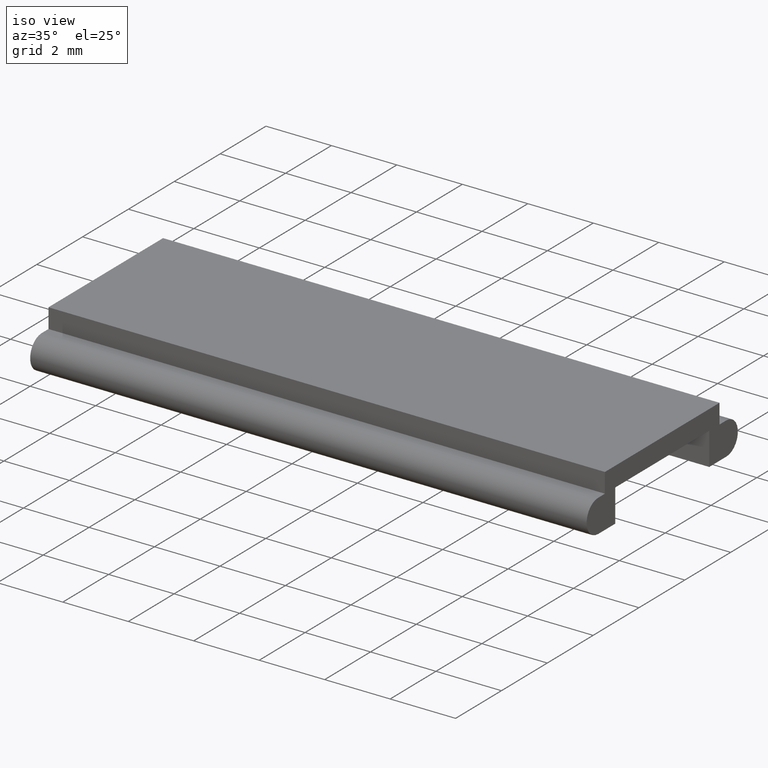
[diagram: clean part render]
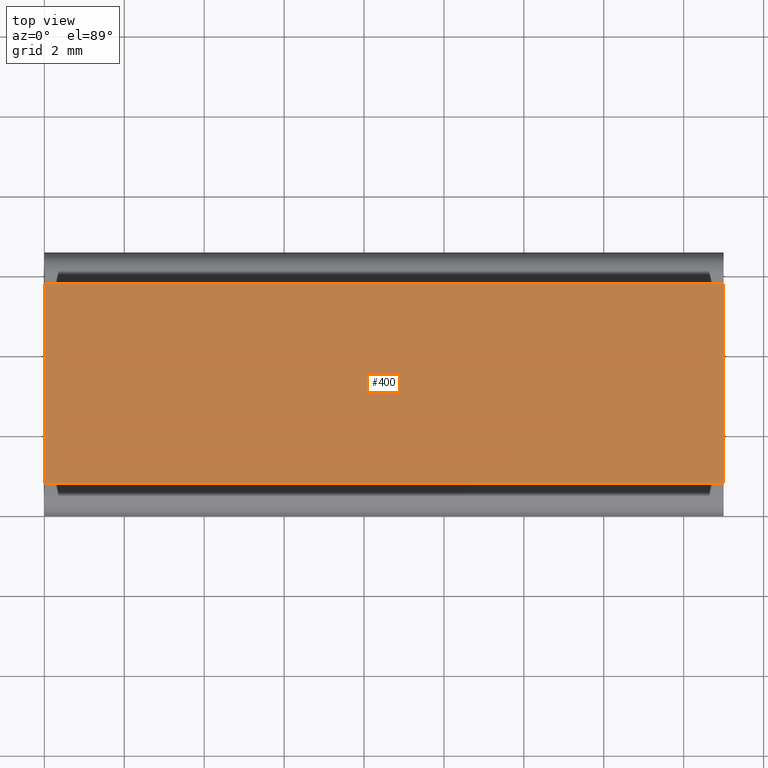
[diagram: tour spotlight — one face highlighted and labeled with its STEP entity id]
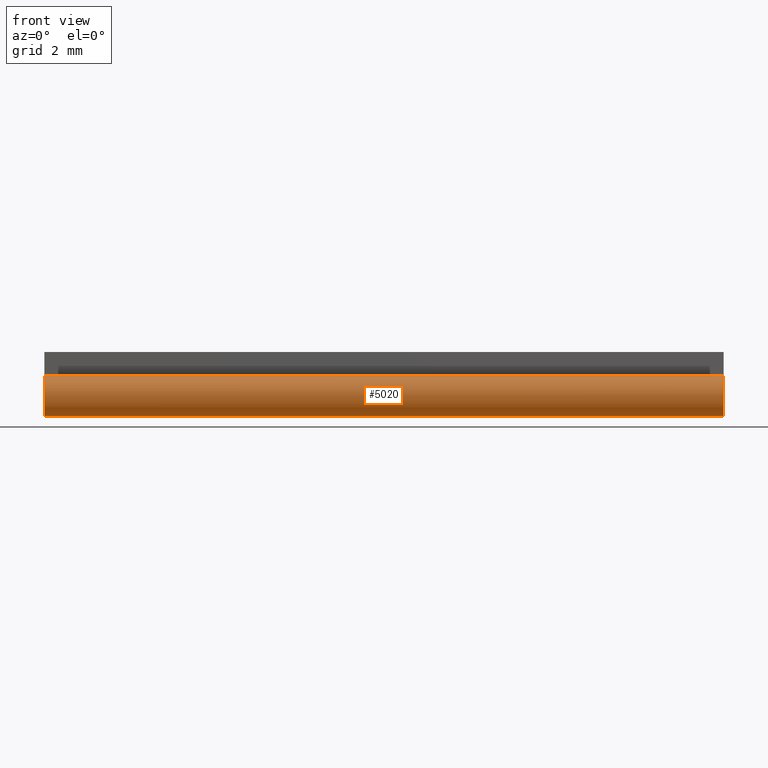
[diagram: tour spotlight — one face highlighted and labeled with its STEP entity id]
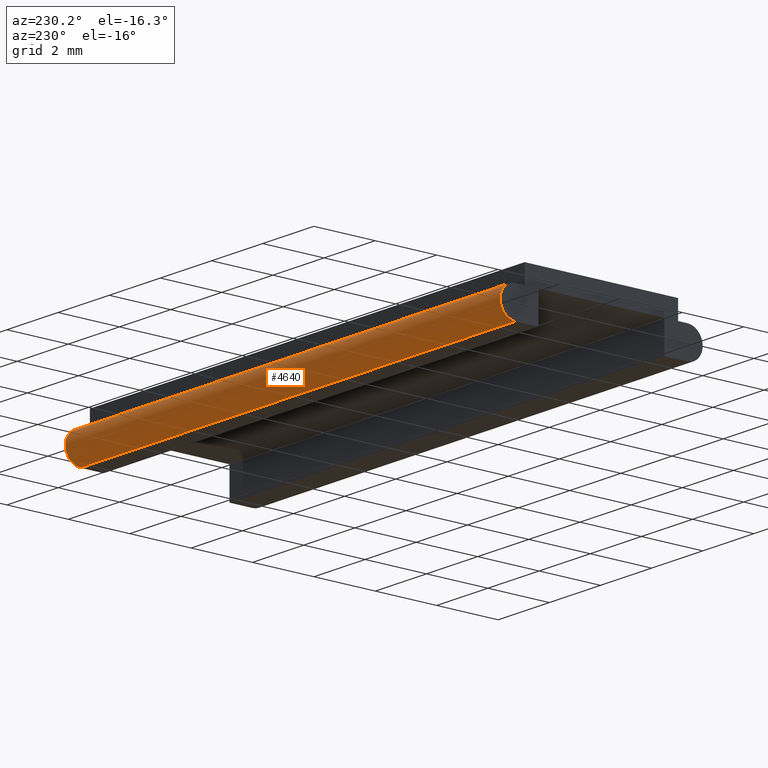
[diagram: tour spotlight — one face highlighted and labeled with its STEP entity id]
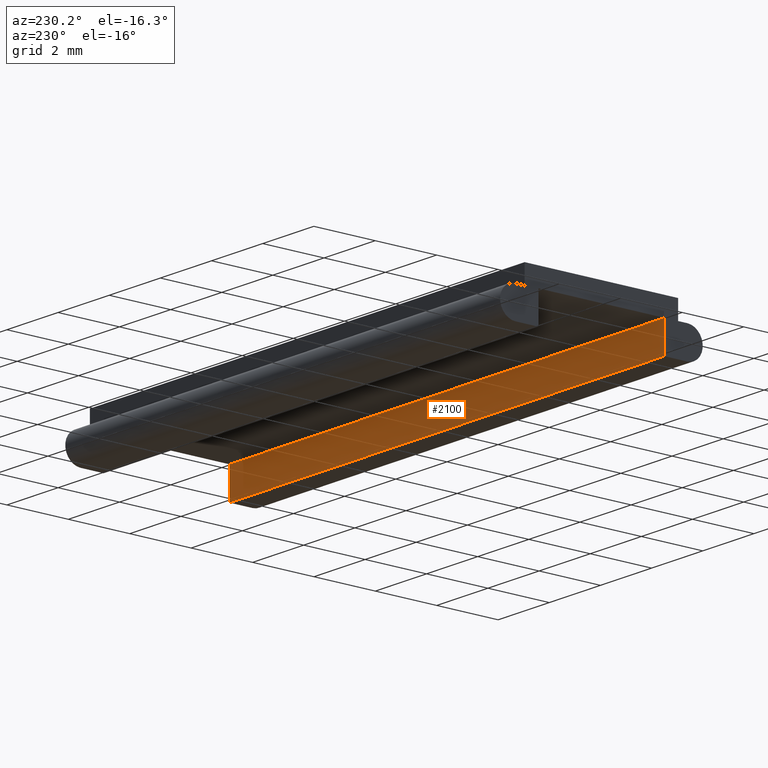
[diagram: tour spotlight — one face highlighted and labeled with its STEP entity id]
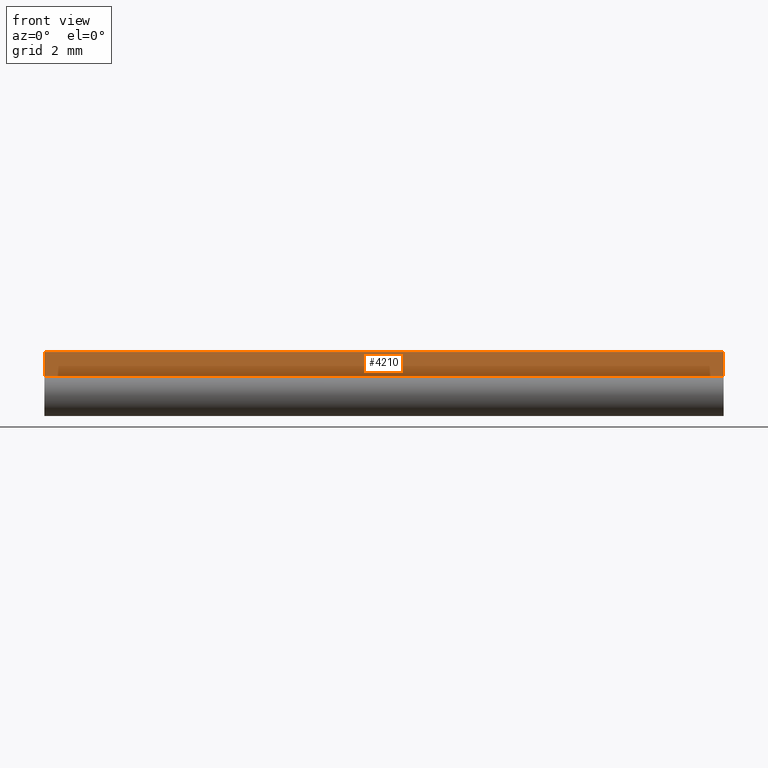
[diagram: tour spotlight — one face highlighted and labeled with its STEP entity id]
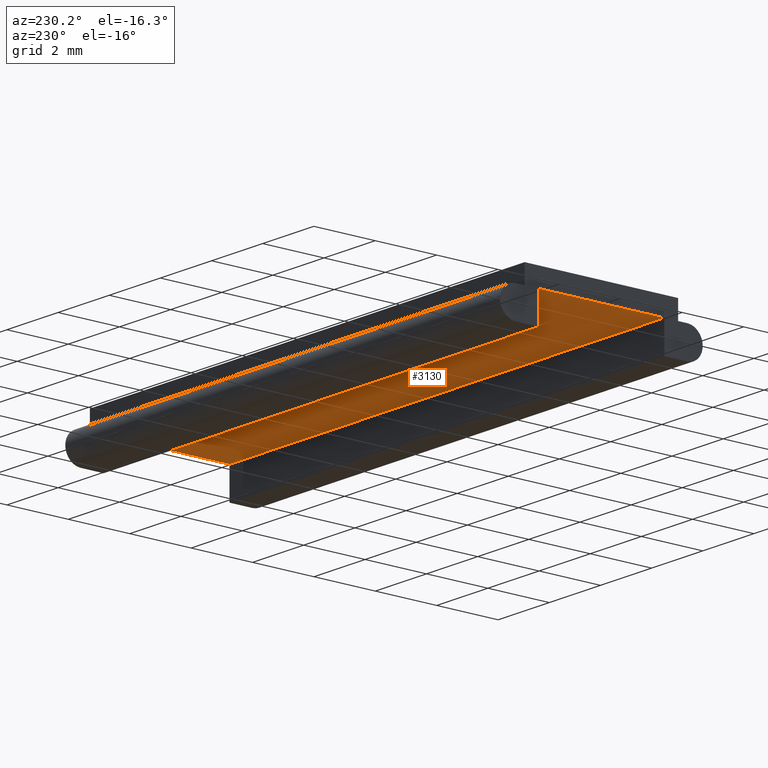
[diagram: tour spotlight — one face highlighted and labeled with its STEP entity id]
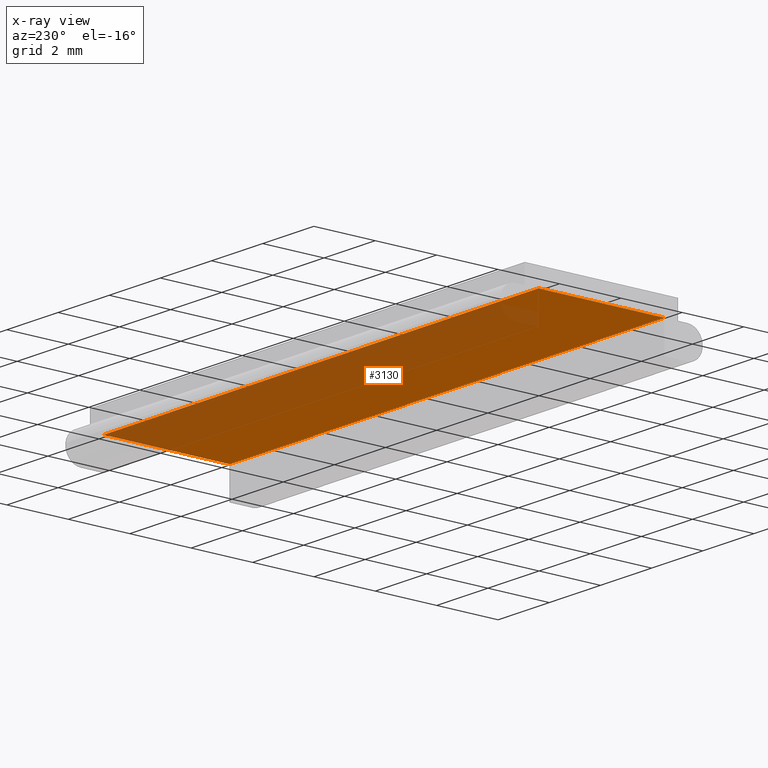
[diagram: x-ray of the same camera — body ghosted, this tour face saturated]
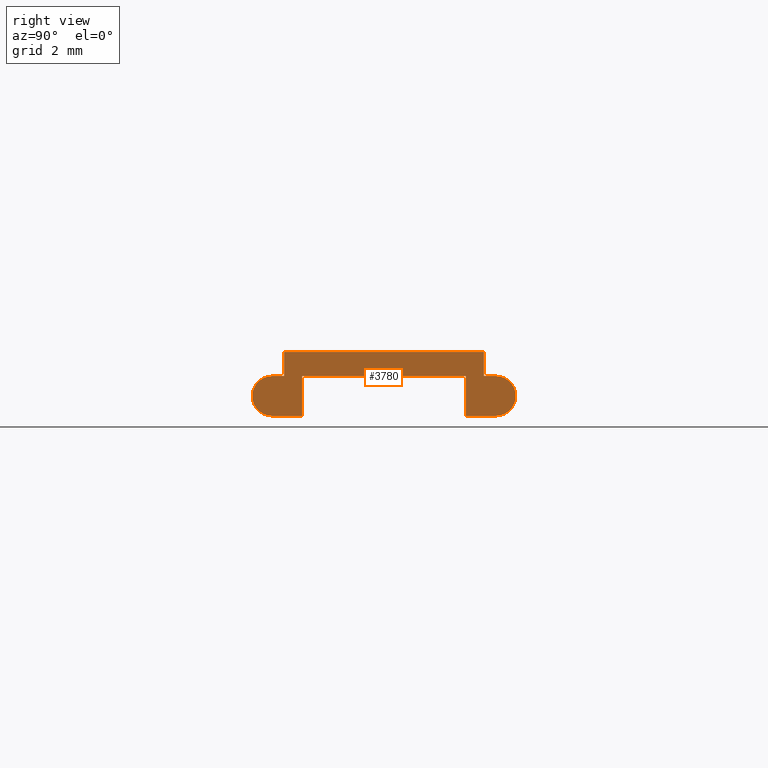
[diagram: tour spotlight — one face highlighted and labeled with its STEP entity id]
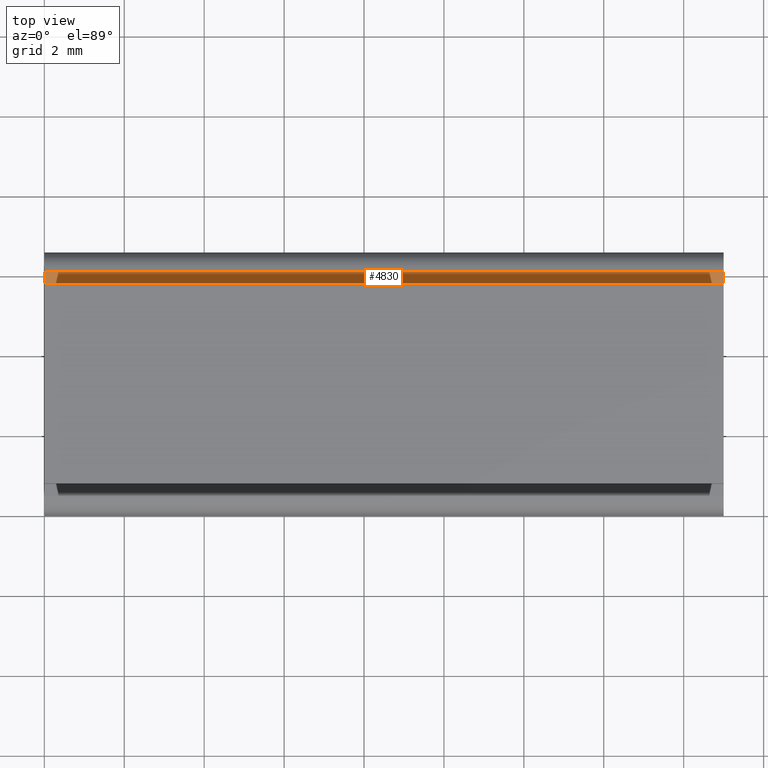
[diagram: tour spotlight — one face highlighted and labeled with its STEP entity id]
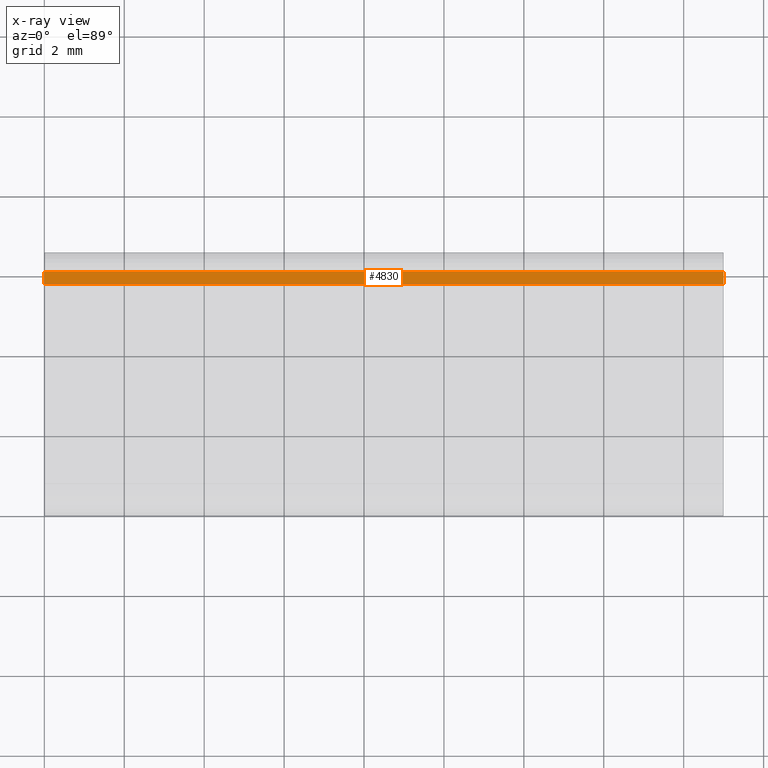
[diagram: x-ray of the same camera — body ghosted, this tour face saturated]
A machine part: a face-by-face anatomy tour. The part has 14 B-rep faces; the first image is the clean iso view, then the 8 largest visible faces are spotlighted one at a time (largest first), each with its STEP entity span.

Face 1 — top view, entity #400. In plain terms, the highlighted planar face has unit normal (0, -0, 1).
Definition (entity closure, byte-faithful):
#10=CARTESIAN_POINT('',(381.426447634406,993.884349945384,
0.0999999999999872));
#20=DIRECTION('',(-0.,6.12323399573677E-17,1.));
#30=DIRECTION('',(1.,0.,0.));
#40=AXIS2_PLACEMENT_3D('',#10,#20,#30);
#50=PLANE('',#40);
#60=CARTESIAN_POINT('',(398.426447634406,0.,0.100000000000048));
#70=DIRECTION('',(0.,1.,-6.12323399573677E-17));
#80=VECTOR('',#70,1.);
#90=LINE('',#60,#80);
#100=CARTESIAN_POINT('',(398.426447634406,987.424347545384,
0.0999999999999876));
#110=VERTEX_POINT('',#100);
#120=CARTESIAN_POINT('',(398.426447634406,992.424347545384,
0.0999999999999873));
#130=VERTEX_POINT('',#120);
#140=EDGE_CURVE('',#110,#130,#90,.T.);
#150=ORIENTED_EDGE('',*,*,#140,.T.);
#160=CARTESIAN_POINT('',(0.,987.424347545384,0.0999999999999876));
#170=DIRECTION('',(-1.,0.,0.));
#180=VECTOR('',#170,1.);
#190=LINE('',#160,#180);
#200=CARTESIAN_POINT('',(381.426447634406,987.424347545384,
0.0999999999999876));
#210=VERTEX_POINT('',#200);
#220=EDGE_CURVE('',#110,#210,#190,.T.);
#230=ORIENTED_EDGE('',*,*,#220,.F.);
#240=CARTESIAN_POINT('',(381.426447634406,0.,0.100000000000048));
#250=DIRECTION('',(0.,-1.,6.12323399573677E-17));
#260=VECTOR('',#250,1.);
#270=LINE('',#240,#260);
#280=CARTESIAN_POINT('',(381.426447634406,992.424347545384,
0.0999999999999873));
#290=VERTEX_POINT('',#280);
#300=EDGE_CURVE('',#290,#210,#270,.T.);
#310=ORIENTED_EDGE('',*,*,#300,.T.);
#320=CARTESIAN_POINT('',(0.,992.424347545384,0.0999999999999873));
#330=DIRECTION('',(1.,0.,0.));
#340=VECTOR('',#330,1.);
#350=LINE('',#320,#340);
#360=EDGE_CURVE('',#290,#130,#350,.T.);
#370=ORIENTED_EDGE('',*,*,#360,.F.);
#380=EDGE_LOOP('',(#370,#310,#230,#150));
#390=FACE_OUTER_BOUND('',#380,.T.);
#400=ADVANCED_FACE('',(#390),#50,.T.);

Face 2 — front view, entity #5020. In plain terms, the highlighted cylindrical surface (edge-blend (fillet) strip) has radius 0.5 mm, axis along (-1, 0, 0).
Definition (entity closure, byte-faithful):
#1050=CARTESIAN_POINT('',(398.426447634406,992.724347545384,
-1.50000000000001));
#1060=VERTEX_POINT('',#1050);
#1090=CARTESIAN_POINT('',(381.426447634406,992.724347545384,
-1.50000000000002));
#1100=DIRECTION('',(1.,0.,0.));
#1110=VECTOR('',#1100,1.);
#1120=LINE('',#1090,#1110);
#1130=CARTESIAN_POINT('',(381.426447634406,992.724347545384,
-1.50000000000001));
#1140=VERTEX_POINT('',#1130);
#1150=EDGE_CURVE('',#1140,#1060,#1120,.T.);
#1420=CARTESIAN_POINT('',(381.426447634406,992.724347545384,
-0.500000000000021));
#1430=VERTEX_POINT('',#1420);
#1480=CARTESIAN_POINT('',(381.426447634406,992.724347545384,
-0.500000000000021));
#1490=DIRECTION('',(1.,0.,0.));
#1500=VECTOR('',#1490,1.);
#1510=LINE('',#1480,#1500);
#1520=CARTESIAN_POINT('',(398.426447634406,992.724347545384,
-0.500000000000021));
#1530=VERTEX_POINT('',#1520);
#1540=EDGE_CURVE('',#1430,#1530,#1510,.T.);
#2320=CARTESIAN_POINT('',(398.426447634406,992.724347545384,
-1.00000000000002));
#2330=DIRECTION('',(1.,0.,0.));
#2340=DIRECTION('',(0.,1.,0.));
#2350=AXIS2_PLACEMENT_3D('',#2320,#2330,#2340);
#2360=CIRCLE('',#2350,0.5);
#2370=EDGE_CURVE('',#1060,#1530,#2360,.T.);
#3600=CARTESIAN_POINT('',(381.426447634406,992.724347545384,
-1.00000000000002));
#3610=DIRECTION('',(1.,0.,0.));
#3620=DIRECTION('',(0.,1.,0.));
#3630=AXIS2_PLACEMENT_3D('',#3600,#3610,#3620);
#3640=CIRCLE('',#3630,0.5);
#3650=EDGE_CURVE('',#1140,#1430,#3640,.T.);
#4910=CARTESIAN_POINT('',(381.426447634406,992.724347545384,
-1.00000000000002));
#4920=DIRECTION('',(1.,0.,0.));
#4930=DIRECTION('',(0.,1.,0.));
#4940=AXIS2_PLACEMENT_3D('',#4910,#4920,#4930);
#4950=CYLINDRICAL_SURFACE('',#4940,0.5);
#4960=ORIENTED_EDGE('',*,*,#1540,.T.);
#4970=ORIENTED_EDGE('',*,*,#3650,.T.);
#4980=ORIENTED_EDGE('',*,*,#1150,.F.);
#4990=ORIENTED_EDGE('',*,*,#2370,.F.);
#5000=EDGE_LOOP('',(#4990,#4980,#4970,#4960));
#5010=FACE_OUTER_BOUND('',#5000,.T.);
#5020=ADVANCED_FACE('',(#5010),#4950,.T.);

Face 3 — auxiliary view, entity #4640. In plain terms, the highlighted cylindrical surface (edge-blend (fillet) strip) has radius 0.5 mm, axis along (-1, 0, 0).
Definition (entity closure, byte-faithful):
#2610=CARTESIAN_POINT('',(398.426447634406,987.124347545384,
-1.50000000000002));
#2620=VERTEX_POINT('',#2610);
#2650=CARTESIAN_POINT('',(398.426447634406,987.124347545384,
-1.00000000000002));
#2660=DIRECTION('',(1.,0.,0.));
#2670=DIRECTION('',(0.,1.,0.));
#2680=AXIS2_PLACEMENT_3D('',#2650,#2660,#2670);
#2690=CIRCLE('',#2680,0.5);
#2700=CARTESIAN_POINT('',(398.426447634406,987.124347545384,
-0.500000000000021));
#2710=VERTEX_POINT('',#2700);
#2720=EDGE_CURVE('',#2710,#2620,#2690,.T.);
#3300=CARTESIAN_POINT('',(381.426447634406,987.124347545384,
-0.500000000000021));
#3310=VERTEX_POINT('',#3300);
#3340=CARTESIAN_POINT('',(381.426447634406,987.124347545384,
-1.00000000000002));
#3350=DIRECTION('',(1.,0.,0.));
#3360=DIRECTION('',(0.,1.,0.));
#3370=AXIS2_PLACEMENT_3D('',#3340,#3350,#3360);
#3380=CIRCLE('',#3370,0.5);
#3390=CARTESIAN_POINT('',(381.426447634406,987.124347545384,
-1.50000000000002));
#3400=VERTEX_POINT('',#3390);
#3410=EDGE_CURVE('',#3310,#3400,#3380,.T.);
#4300=CARTESIAN_POINT('',(381.426447634406,987.124347545384,
-1.50000000000002));
#4310=DIRECTION('',(1.,0.,0.));
#4320=VECTOR('',#4310,1.);
#4330=LINE('',#4300,#4320);
#4340=EDGE_CURVE('',#3400,#2620,#4330,.T.);
#4480=CARTESIAN_POINT('',(381.426447634406,987.124347545384,
-1.00000000000002));
#4490=DIRECTION('',(1.,0.,0.));
#4500=DIRECTION('',(0.,1.,0.));
#4510=AXIS2_PLACEMENT_3D('',#4480,#4490,#4500);
#4520=CYLINDRICAL_SURFACE('',#4510,0.5);
#4530=ORIENTED_EDGE('',*,*,#4340,.T.);
#4540=ORIENTED_EDGE('',*,*,#3410,.T.);
#4550=CARTESIAN_POINT('',(381.426447634406,987.124347545384,
-0.500000000000021));
#4560=DIRECTION('',(1.,0.,0.));
#4570=VECTOR('',#4560,1.);
#4580=LINE('',#4550,#4570);
#4590=EDGE_CURVE('',#3310,#2710,#4580,.T.);
#4600=ORIENTED_EDGE('',*,*,#4590,.F.);
#4610=ORIENTED_EDGE('',*,*,#2720,.F.);
#4620=EDGE_LOOP('',(#4610,#4600,#4540,#4530));
#4630=FACE_OUTER_BOUND('',#4620,.T.);
#4640=ADVANCED_FACE('',(#4630),#4520,.T.);

Face 4 — auxiliary view, entity #2100. In plain terms, the highlighted planar face has unit normal (0, 1, 0).
Definition (entity closure, byte-faithful):
#910=CARTESIAN_POINT('',(0.,991.974347545384,-1.50000000000001));
#920=DIRECTION('',(-1.,0.,0.));
#930=VECTOR('',#920,1.);
#940=LINE('',#910,#930);
#950=CARTESIAN_POINT('',(398.426447634406,991.974347545384,
-1.50000000000001));
#960=VERTEX_POINT('',#950);
#970=CARTESIAN_POINT('',(381.426447634406,991.974347545384,
-1.50000000000001));
#980=VERTEX_POINT('',#970);
#990=EDGE_CURVE('',#960,#980,#940,.T.);
#1800=CARTESIAN_POINT('',(381.426447634406,991.974347545384,
-1.00000000000002));
#1810=DIRECTION('',(0.,-1.,0.));
#1820=DIRECTION('',(0.,0.,1.));
#1830=AXIS2_PLACEMENT_3D('',#1800,#1810,#1820);
#1840=PLANE('',#1830);
#1850=CARTESIAN_POINT('',(381.426447634406,991.974347545384,0.));
#1860=DIRECTION('',(0.,0.,-1.));
#1870=VECTOR('',#1860,1.);
#1880=LINE('',#1850,#1870);
#1890=CARTESIAN_POINT('',(381.426447634406,991.974347545384,
-0.500000000000021));
#1900=VERTEX_POINT('',#1890);
#1910=EDGE_CURVE('',#1900,#980,#1880,.T.);
#1920=ORIENTED_EDGE('',*,*,#1910,.T.);
#1930=CARTESIAN_POINT('',(0.,991.974347545384,-0.500000000000021));
#1940=DIRECTION('',(-1.,0.,0.));
#1950=VECTOR('',#1940,1.);
#1960=LINE('',#1930,#1950);
#1970=CARTESIAN_POINT('',(398.426447634406,991.974347545384,
-0.500000000000021));
#1980=VERTEX_POINT('',#1970);
#1990=EDGE_CURVE('',#1980,#1900,#1960,.T.);
#2000=ORIENTED_EDGE('',*,*,#1990,.T.);
#2010=CARTESIAN_POINT('',(398.426447634406,991.974347545384,0.));
#2020=DIRECTION('',(0.,0.,1.));
#2030=VECTOR('',#2020,1.);
#2040=LINE('',#2010,#2030);
#2050=EDGE_CURVE('',#960,#1980,#2040,.T.);
#2060=ORIENTED_EDGE('',*,*,#2050,.T.);
#2070=ORIENTED_EDGE('',*,*,#990,.F.);
#2080=EDGE_LOOP('',(#2070,#2060,#2000,#1920));
#2090=FACE_OUTER_BOUND('',#2080,.T.);
#2100=ADVANCED_FACE('',(#2090),#1840,.T.);

Face 5 — front view, entity #4210. In plain terms, the highlighted planar face has unit normal (0, -1, 0).
Definition (entity closure, byte-faithful):
#120=CARTESIAN_POINT('',(398.426447634406,992.424347545384,
0.0999999999999873));
#130=VERTEX_POINT('',#120);
#280=CARTESIAN_POINT('',(381.426447634406,992.424347545384,
0.0999999999999873));
#290=VERTEX_POINT('',#280);
#320=CARTESIAN_POINT('',(0.,992.424347545384,0.0999999999999873));
#330=DIRECTION('',(1.,0.,0.));
#340=VECTOR('',#330,1.);
#350=LINE('',#320,#340);
#360=EDGE_CURVE('',#290,#130,#350,.T.);
#1440=CARTESIAN_POINT('',(381.426447634406,992.424347545384,
-0.500000000000021));
#1450=VERTEX_POINT('',#1440);
#1600=CARTESIAN_POINT('',(398.426447634406,992.424347545384,
-0.500000000000021));
#1610=VERTEX_POINT('',#1600);
#1640=CARTESIAN_POINT('',(0.,992.424347545384,-0.500000000000021));
#1650=DIRECTION('',(-1.,0.,0.));
#1660=VECTOR('',#1650,1.);
#1670=LINE('',#1640,#1660);
#1680=EDGE_CURVE('',#1610,#1450,#1670,.T.);
#2250=CARTESIAN_POINT('',(398.426447634406,992.424347545384,0.));
#2260=DIRECTION('',(0.,0.,-1.));
#2270=VECTOR('',#2260,1.);
#2280=LINE('',#2250,#2270);
#2290=EDGE_CURVE('',#130,#1610,#2280,.T.);
#3680=CARTESIAN_POINT('',(381.426447634406,992.424347545384,0.));
#3690=DIRECTION('',(0.,0.,1.));
#3700=VECTOR('',#3690,1.);
#3710=LINE('',#3680,#3700);
#3720=EDGE_CURVE('',#1450,#290,#3710,.T.);
#4100=CARTESIAN_POINT('',(475.426447634406,992.424347545384,
-1.66000240000002));
#4110=DIRECTION('',(-0.,1.,0.));
#4120=DIRECTION('',(1.,0.,0.));
#4130=AXIS2_PLACEMENT_3D('',#4100,#4110,#4120);
#4140=PLANE('',#4130);
#4150=ORIENTED_EDGE('',*,*,#1680,.T.);
#4160=ORIENTED_EDGE('',*,*,#2290,.T.);
#4170=ORIENTED_EDGE('',*,*,#360,.T.);
#4180=ORIENTED_EDGE('',*,*,#3720,.T.);
#4190=EDGE_LOOP('',(#4180,#4170,#4160,#4150));
#4200=FACE_OUTER_BOUND('',#4190,.T.);
#4210=ADVANCED_FACE('',(#4200),#4140,.T.);

Face 6 — auxiliary view, entity #3130. An x-ray twin of the same camera follows (body ghosted, this face saturated) — the face is partly hidden behind the body. In plain terms, the highlighted planar face has unit normal (0, 0, -1).
Definition (entity closure, byte-faithful):
#1890=CARTESIAN_POINT('',(381.426447634406,991.974347545384,
-0.500000000000021));
#1900=VERTEX_POINT('',#1890);
#1930=CARTESIAN_POINT('',(0.,991.974347545384,-0.500000000000021));
#1940=DIRECTION('',(-1.,0.,0.));
#1950=VECTOR('',#1940,1.);
#1960=LINE('',#1930,#1950);
#1970=CARTESIAN_POINT('',(398.426447634406,991.974347545384,
-0.500000000000021));
#1980=VERTEX_POINT('',#1970);
#1990=EDGE_CURVE('',#1980,#1900,#1960,.T.);
#2410=CARTESIAN_POINT('',(398.426447634406,0.,-0.500000000000021));
#2420=DIRECTION('',(0.,-1.,0.));
#2430=VECTOR('',#2420,1.);
#2440=LINE('',#2410,#2430);
#2450=CARTESIAN_POINT('',(398.426447634406,987.874347545384,
-0.500000000000021));
#2460=VERTEX_POINT('',#2450);
#2470=EDGE_CURVE('',#1980,#2460,#2440,.T.);
#2900=CARTESIAN_POINT('',(381.426447634406,991.674347545384,
-0.500000000000021));
#2910=DIRECTION('',(-0.,-0.,-1.));
#2920=DIRECTION('',(0.,-1.,0.));
#2930=AXIS2_PLACEMENT_3D('',#2900,#2910,#2920);
#2940=PLANE('',#2930);
#2950=CARTESIAN_POINT('',(0.,987.874347545384,-0.500000000000021));
#2960=DIRECTION('',(-1.,0.,0.));
#2970=VECTOR('',#2960,1.);
#2980=LINE('',#2950,#2970);
#2990=CARTESIAN_POINT('',(381.426447634406,987.874347545384,
-0.500000000000021));
#3000=VERTEX_POINT('',#2990);
#3010=EDGE_CURVE('',#2460,#3000,#2980,.T.);
#3020=ORIENTED_EDGE('',*,*,#3010,.T.);
#3030=ORIENTED_EDGE('',*,*,#2470,.T.);
#3040=ORIENTED_EDGE('',*,*,#1990,.F.);
#3050=CARTESIAN_POINT('',(381.426447634406,0.,-0.500000000000021));
#3060=DIRECTION('',(0.,1.,0.));
#3070=VECTOR('',#3060,1.);
#3080=LINE('',#3050,#3070);
#3090=EDGE_CURVE('',#3000,#1900,#3080,.T.);
#3100=ORIENTED_EDGE('',*,*,#3090,.T.);
#3110=EDGE_LOOP('',(#3100,#3040,#3030,#3020));
#3120=FACE_OUTER_BOUND('',#3110,.T.);
#3130=ADVANCED_FACE('',(#3120),#2940,.T.);

Face 7 — right view, entity #3780. In plain terms, the highlighted planar face has unit normal (1, 0, 0).
Definition (entity closure, byte-faithful):
#200=CARTESIAN_POINT('',(381.426447634406,987.424347545384,
0.0999999999999876));
#210=VERTEX_POINT('',#200);
#240=CARTESIAN_POINT('',(381.426447634406,0.,0.100000000000048));
#250=DIRECTION('',(0.,-1.,6.12323399573677E-17));
#260=VECTOR('',#250,1.);
#270=LINE('',#240,#260);
#280=CARTESIAN_POINT('',(381.426447634406,992.424347545384,
0.0999999999999873));
#290=VERTEX_POINT('',#280);
#300=EDGE_CURVE('',#290,#210,#270,.T.);
#530=CARTESIAN_POINT('',(381.426447634406,987.424347545384,0.));
#540=DIRECTION('',(0.,0.,-1.));
#550=VECTOR('',#540,1.);
#560=LINE('',#530,#550);
#570=CARTESIAN_POINT('',(381.426447634406,987.424347545384,
-0.500000000000021));
#580=VERTEX_POINT('',#570);
#590=EDGE_CURVE('',#210,#580,#560,.T.);
#970=CARTESIAN_POINT('',(381.426447634406,991.974347545384,
-1.50000000000001));
#980=VERTEX_POINT('',#970);
#1130=CARTESIAN_POINT('',(381.426447634406,992.724347545384,
-1.50000000000001));
#1140=VERTEX_POINT('',#1130);
#1170=CARTESIAN_POINT('',(381.426447634406,0.,-1.49999999999995));
#1180=DIRECTION('',(0.,1.,-6.12323399573677E-17));
#1190=VECTOR('',#1180,1.);
#1200=LINE('',#1170,#1190);
#1210=EDGE_CURVE('',#980,#1140,#1200,.T.);
#1380=CARTESIAN_POINT('',(381.426447634406,0.,-0.500000000000021));
#1390=DIRECTION('',(0.,-1.,0.));
#1400=VECTOR('',#1390,1.);
#1410=LINE('',#1380,#1400);
#1420=CARTESIAN_POINT('',(381.426447634406,992.724347545384,
-0.500000000000021));
#1430=VERTEX_POINT('',#1420);
#1440=CARTESIAN_POINT('',(381.426447634406,992.424347545384,
-0.500000000000021));
#1450=VERTEX_POINT('',#1440);
#1460=EDGE_CURVE('',#1430,#1450,#1410,.T.);
#1850=CARTESIAN_POINT('',(381.426447634406,991.974347545384,0.));
#1860=DIRECTION('',(0.,0.,-1.));
#1870=VECTOR('',#1860,1.);
#1880=LINE('',#1850,#1870);
#1890=CARTESIAN_POINT('',(381.426447634406,991.974347545384,
-0.500000000000021));
#1900=VERTEX_POINT('',#1890);
#1910=EDGE_CURVE('',#1900,#980,#1880,.T.);
#2990=CARTESIAN_POINT('',(381.426447634406,987.874347545384,
-0.500000000000021));
#3000=VERTEX_POINT('',#2990);
#3050=CARTESIAN_POINT('',(381.426447634406,0.,-0.500000000000021));
#3060=DIRECTION('',(0.,1.,0.));
#3070=VECTOR('',#3060,1.);
#3080=LINE('',#3050,#3070);
#3090=EDGE_CURVE('',#3000,#1900,#3080,.T.);
#3210=CARTESIAN_POINT('',(381.426447634406,993.884349945384,
-1.50000000000001));
#3220=DIRECTION('',(-1.,0.,0.));
#3230=DIRECTION('',(0.,6.12323399573677E-17,1.));
#3240=AXIS2_PLACEMENT_3D('',#3210,#3220,#3230);
#3250=PLANE('',#3240);
#3260=CARTESIAN_POINT('',(381.426447634406,0.,-0.500000000000021));
#3270=DIRECTION('',(0.,-1.,0.));
#3280=VECTOR('',#3270,1.);
#3290=LINE('',#3260,#3280);
#3300=CARTESIAN_POINT('',(381.426447634406,987.124347545384,
-0.500000000000021));
#3310=VERTEX_POINT('',#3300);
#3320=EDGE_CURVE('',#580,#3310,#3290,.T.);
#3330=ORIENTED_EDGE('',*,*,#3320,.F.);
#3340=CARTESIAN_POINT('',(381.426447634406,987.124347545384,
-1.00000000000002));
#3350=DIRECTION('',(1.,0.,0.));
#3360=DIRECTION('',(0.,1.,0.));
#3370=AXIS2_PLACEMENT_3D('',#3340,#3350,#3360);
#3380=CIRCLE('',#3370,0.5);
#3390=CARTESIAN_POINT('',(381.426447634406,987.124347545384,
-1.50000000000002));
#3400=VERTEX_POINT('',#3390);
#3410=EDGE_CURVE('',#3310,#3400,#3380,.T.);
#3420=ORIENTED_EDGE('',*,*,#3410,.F.);
#3430=CARTESIAN_POINT('',(381.426447634406,0.,-1.49999999999995));
#3440=DIRECTION('',(0.,1.,-6.12323399573677E-17));
#3450=VECTOR('',#3440,1.);
#3460=LINE('',#3430,#3450);
#3470=CARTESIAN_POINT('',(381.426447634406,987.874347545384,
-1.50000000000001));
#3480=VERTEX_POINT('',#3470);
#3490=EDGE_CURVE('',#3400,#3480,#3460,.T.);
#3500=ORIENTED_EDGE('',*,*,#3490,.F.);
#3510=CARTESIAN_POINT('',(381.426447634406,987.874347545384,0.));
#3520=DIRECTION('',(0.,0.,1.));
#3530=VECTOR('',#3520,1.);
#3540=LINE('',#3510,#3530);
#3550=EDGE_CURVE('',#3480,#3000,#3540,.T.);
#3560=ORIENTED_EDGE('',*,*,#3550,.F.);
#3570=ORIENTED_EDGE('',*,*,#3090,.F.);
#3580=ORIENTED_EDGE('',*,*,#1910,.F.);
#3590=ORIENTED_EDGE('',*,*,#1210,.F.);
#3600=CARTESIAN_POINT('',(381.426447634406,992.724347545384,
-1.00000000000002));
#3610=DIRECTION('',(1.,0.,0.));
#3620=DIRECTION('',(0.,1.,0.));
#3630=AXIS2_PLACEMENT_3D('',#3600,#3610,#3620);
#3640=CIRCLE('',#3630,0.5);
#3650=EDGE_CURVE('',#1140,#1430,#3640,.T.);
#3660=ORIENTED_EDGE('',*,*,#3650,.F.);
#3670=ORIENTED_EDGE('',*,*,#1460,.F.);
#3680=CARTESIAN_POINT('',(381.426447634406,992.424347545384,0.));
#3690=DIRECTION('',(0.,0.,1.));
#3700=VECTOR('',#3690,1.);
#3710=LINE('',#3680,#3700);
#3720=EDGE_CURVE('',#1450,#290,#3710,.T.);
#3730=ORIENTED_EDGE('',*,*,#3720,.F.);
#3740=ORIENTED_EDGE('',*,*,#300,.F.);
#3750=ORIENTED_EDGE('',*,*,#590,.F.);
#3760=EDGE_LOOP('',(#3750,#3740,#3730,#3670,#3660,#3590,#3580,#3570,
#3560,#3500,#3420,#3330));
#3770=FACE_OUTER_BOUND('',#3760,.T.);
#3780=ADVANCED_FACE('',(#3770),#3250,.T.);

Face 8 — top view, entity #4830. An x-ray twin of the same camera follows (body ghosted, this face saturated) — the face is partly hidden behind the body. In plain terms, the highlighted planar face has unit normal (0, 0, 1).
Definition (entity closure, byte-faithful):
#570=CARTESIAN_POINT('',(381.426447634406,987.424347545384,
-0.500000000000021));
#580=VERTEX_POINT('',#570);
#660=CARTESIAN_POINT('',(398.426447634406,987.424347545384,
-0.500000000000021));
#670=VERTEX_POINT('',#660);
#700=CARTESIAN_POINT('',(0.,987.424347545384,-0.500000000000021));
#710=DIRECTION('',(-1.,0.,0.));
#720=VECTOR('',#710,1.);
#730=LINE('',#700,#720);
#740=EDGE_CURVE('',#670,#580,#730,.T.);
#2700=CARTESIAN_POINT('',(398.426447634406,987.124347545384,
-0.500000000000021));
#2710=VERTEX_POINT('',#2700);
#2740=CARTESIAN_POINT('',(398.426447634406,0.,-0.500000000000021));
#2750=DIRECTION('',(0.,1.,0.));
#2760=VECTOR('',#2750,1.);
#2770=LINE('',#2740,#2760);
#2780=EDGE_CURVE('',#2710,#670,#2770,.T.);
#3260=CARTESIAN_POINT('',(381.426447634406,0.,-0.500000000000021));
#3270=DIRECTION('',(0.,-1.,0.));
#3280=VECTOR('',#3270,1.);
#3290=LINE('',#3260,#3280);
#3300=CARTESIAN_POINT('',(381.426447634406,987.124347545384,
-0.500000000000021));
#3310=VERTEX_POINT('',#3300);
#3320=EDGE_CURVE('',#580,#3310,#3290,.T.);
#4550=CARTESIAN_POINT('',(381.426447634406,987.124347545384,
-0.500000000000021));
#4560=DIRECTION('',(1.,0.,0.));
#4570=VECTOR('',#4560,1.);
#4580=LINE('',#4550,#4570);
#4590=EDGE_CURVE('',#3310,#2710,#4580,.T.);
#4720=CARTESIAN_POINT('',(381.426447634406,987.124347545384,
-0.500000000000021));
#4730=DIRECTION('',(0.,-0.,1.));
#4740=DIRECTION('',(0.,1.,0.));
#4750=AXIS2_PLACEMENT_3D('',#4720,#4730,#4740);
#4760=PLANE('',#4750);
#4770=ORIENTED_EDGE('',*,*,#740,.T.);
#4780=ORIENTED_EDGE('',*,*,#2780,.T.);
#4790=ORIENTED_EDGE('',*,*,#4590,.T.);
#4800=ORIENTED_EDGE('',*,*,#3320,.T.);
#4810=EDGE_LOOP('',(#4800,#4790,#4780,#4770));
#4820=FACE_OUTER_BOUND('',#4810,.T.);
#4830=ADVANCED_FACE('',(#4820),#4760,.T.);